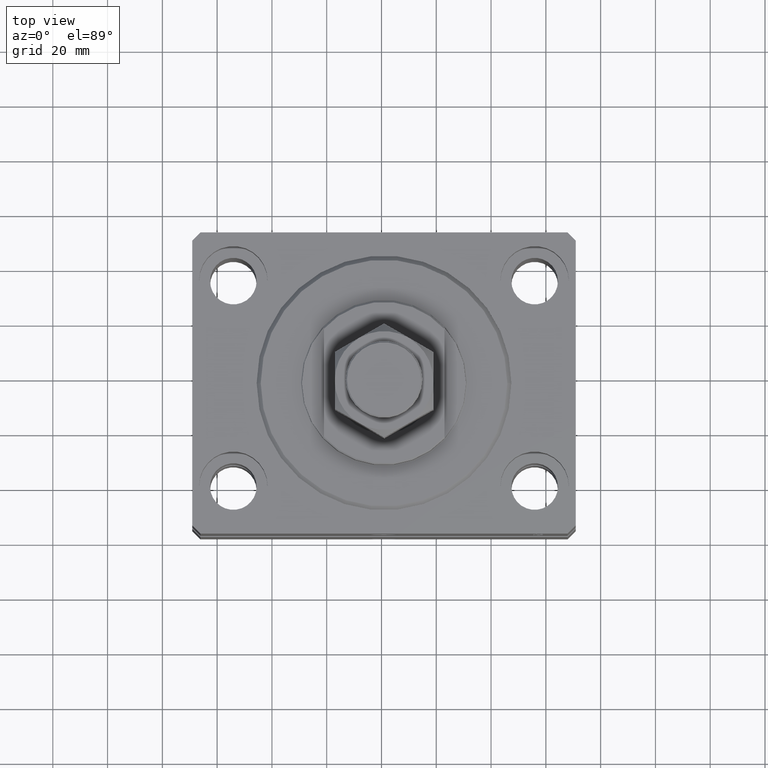
[diagram: clean part render]
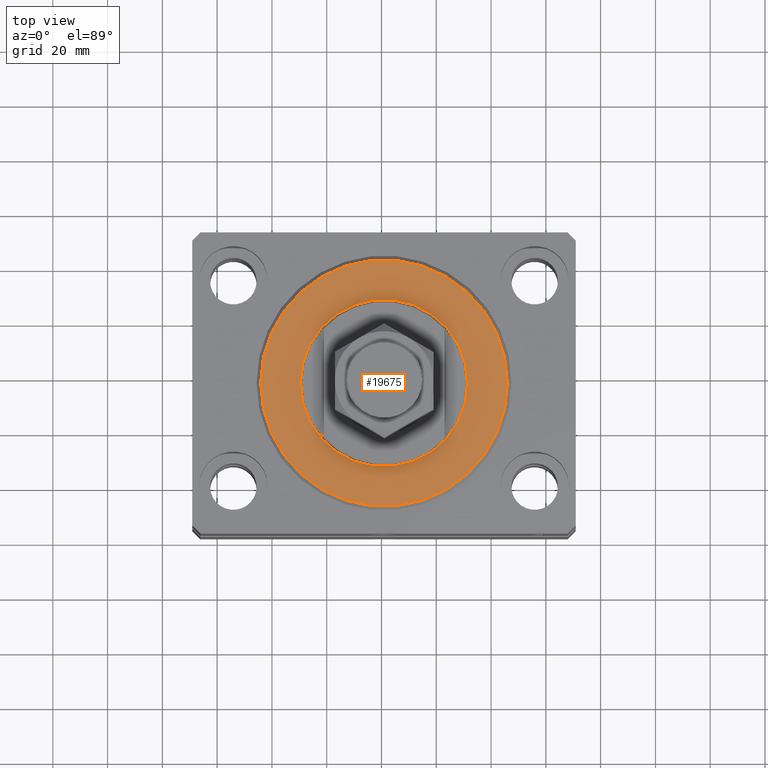
[diagram: same view with one face highlighted and labeled with its STEP entity id]
A machine part, top view. The second image highlights one B-rep face of the part: STEP entity #19675.
In plain terms, the highlighted planar face has unit normal (0, 0, -1).
Its self-contained STEP definition (entity closure, byte-faithful):
#254 = VERTEX_POINT ( 'NONE', #40297 ) ;
#4974 = VERTEX_POINT ( 'NONE', #42006 ) ;
#5114 = DIRECTION ( 'NONE',  ( 0.000000000000000000, 0.000000000000000000, 1.000000000000000000 ) ) ;
#6257 = DIRECTION ( 'NONE',  ( 0.000000000000000000, 0.000000000000000000, 1.000000000000000000 ) ) ;
#6848 = EDGE_CURVE ( 'NONE', #25420, #26809, #14215, .T. ) ;
#6955 = DIRECTION ( 'NONE',  ( 1.000000000000000000, 0.000000000000000000, 0.000000000000000000 ) ) ;
#9746 = AXIS2_PLACEMENT_3D ( 'NONE', #27774, #5114, #16923 ) ;
#11896 = AXIS2_PLACEMENT_3D ( 'NONE', #18291, #39809, #6955 ) ;
#12170 = EDGE_CURVE ( 'NONE', #26809, #25420, #31313, .T. ) ;
#12295 = CIRCLE ( 'NONE', #43938, 45.00000000000000000 ) ;
#12886 = ORIENTED_EDGE ( 'NONE', *, *, #6848, .T. ) ;
#13729 = DIRECTION ( 'NONE',  ( 1.000000000000000000, 0.000000000000000000, -0.000000000000000000 ) ) ;
#13867 = AXIS2_PLACEMENT_3D ( 'NONE', #34141, #39137, #24400 ) ;
#14215 = CIRCLE ( 'NONE', #11896, 30.50000000000000000 ) ;
#16770 = AXIS2_PLACEMENT_3D ( 'NONE', #47077, #6257, #13729 ) ;
#16923 = DIRECTION ( 'NONE',  ( 1.000000000000000000, 0.000000000000000000, 0.000000000000000000 ) ) ;
#17333 = ORIENTED_EDGE ( 'NONE', *, *, #12170, .T. ) ;
#18291 = CARTESIAN_POINT ( 'NONE',  ( 0.000000000000000000, 0.000000000000000000, 0.000000000000000000 ) ) ;
#18830 = EDGE_LOOP ( 'NONE', ( #47647, #19128 ) ) ;
#19128 = ORIENTED_EDGE ( 'NONE', *, *, #35934, .T. ) ;
#19675 = ADVANCED_FACE ( 'NONE', ( #34272, #31830 ), #35214, .F. ) ;
#22340 = CIRCLE ( 'NONE', #13867, 45.00000000000000000 ) ;
#23866 = CARTESIAN_POINT ( 'NONE',  ( 30.50000000000000000, 0.000000000000000000, 2.168404344971008868E-16 ) ) ;
#24400 = DIRECTION ( 'NONE',  ( 1.000000000000000000, 0.000000000000000000, 0.000000000000000000 ) ) ;
#25420 = VERTEX_POINT ( 'NONE', #26177 ) ;
#26177 = CARTESIAN_POINT ( 'NONE',  ( -30.50000000000000000, 3.735172737399427541E-15, 2.168404344971008868E-16 ) ) ;
#26809 = VERTEX_POINT ( 'NONE', #23866 ) ;
#27774 = CARTESIAN_POINT ( 'NONE',  ( 0.000000000000000000, 0.000000000000000000, 0.000000000000000000 ) ) ;
#28152 = CARTESIAN_POINT ( 'NONE',  ( 0.000000000000000000, 0.000000000000000000, 0.000000000000000000 ) ) ;
#31313 = CIRCLE ( 'NONE', #9746, 30.50000000000000000 ) ;
#31830 = FACE_OUTER_BOUND ( 'NONE', #18830, .T. ) ;
#32719 = EDGE_LOOP ( 'NONE', ( #17333, #12886 ) ) ;
#34141 = CARTESIAN_POINT ( 'NONE',  ( 0.000000000000000000, 0.000000000000000000, 0.000000000000000000 ) ) ;
#34272 = FACE_BOUND ( 'NONE', #32719, .T. ) ;
#35164 = DIRECTION ( 'NONE',  ( -0.000000000000000000, -0.000000000000000000, -1.000000000000000000 ) ) ;
#35214 = PLANE ( 'NONE',  #16770 ) ;
#35934 = EDGE_CURVE ( 'NONE', #254, #4974, #12295, .T. ) ;
#36831 = EDGE_CURVE ( 'NONE', #4974, #254, #22340, .T. ) ;
#39137 = DIRECTION ( 'NONE',  ( -0.000000000000000000, -0.000000000000000000, -1.000000000000000000 ) ) ;
#39534 = DIRECTION ( 'NONE',  ( 1.000000000000000000, 0.000000000000000000, 0.000000000000000000 ) ) ;
#39809 = DIRECTION ( 'NONE',  ( 0.000000000000000000, 0.000000000000000000, 1.000000000000000000 ) ) ;
#40297 = CARTESIAN_POINT ( 'NONE',  ( -45.00000000000000000, 5.602759106099140917E-15, 0.000000000000000000 ) ) ;
#42006 = CARTESIAN_POINT ( 'NONE',  ( 45.00000000000000000, 0.000000000000000000, 0.000000000000000000 ) ) ;
#43938 = AXIS2_PLACEMENT_3D ( 'NONE', #28152, #35164, #39534 ) ;
#47077 = CARTESIAN_POINT ( 'NONE',  ( 0.000000000000000000, 0.000000000000000000, 0.000000000000000000 ) ) ;
#47647 = ORIENTED_EDGE ( 'NONE', *, *, #36831, .T. ) ;